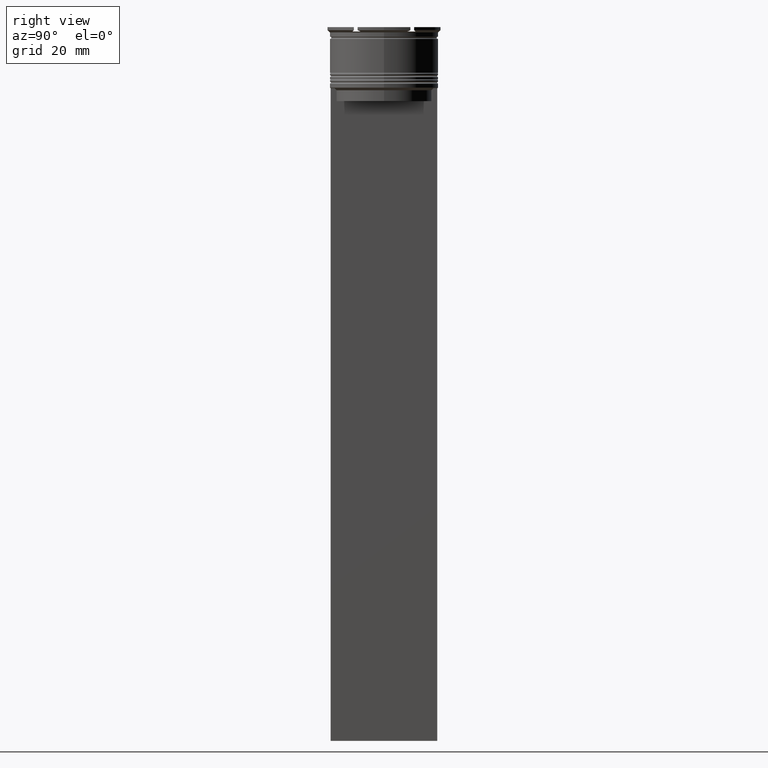
[diagram: clean part render]
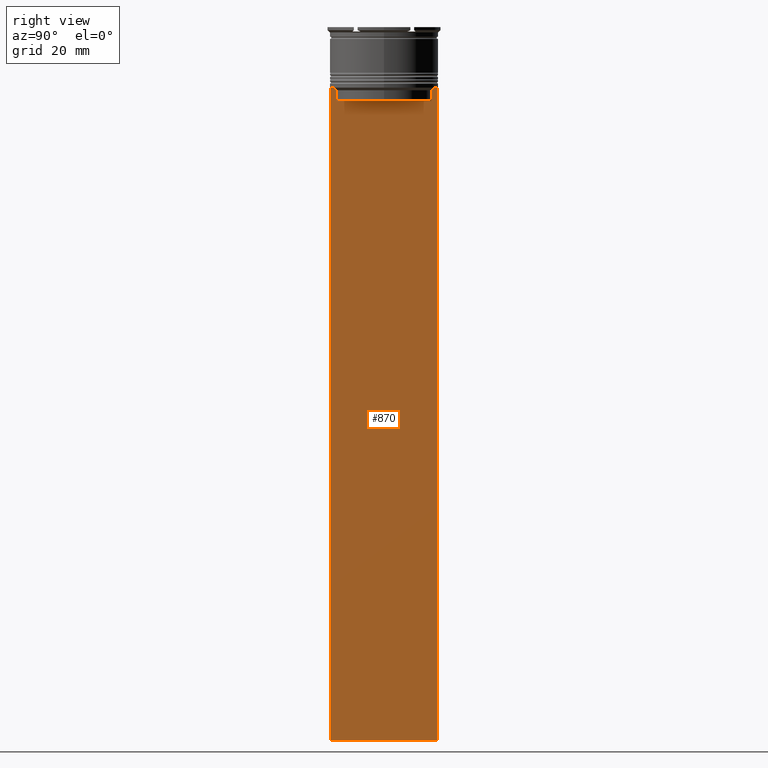
[diagram: same view with one face highlighted and labeled with its STEP entity id]
A machine part, right view. The second image highlights one B-rep face of the part: STEP entity #870.
In plain terms, the highlighted planar face has unit normal (-1, 0, 0).
Its self-contained STEP definition (entity closure, byte-faithful):
#9 = ORIENTED_EDGE ( 'NONE', *, *, #183, .T. ) ;
#49 = VERTEX_POINT ( 'NONE', #2136 ) ;
#102 = CARTESIAN_POINT ( 'NONE',  ( 0.5000000000000002220, -10.88852607105296144, -17.00000000000000000 ) ) ;
#107 = VERTEX_POINT ( 'NONE', #1442 ) ;
#111 = EDGE_CURVE ( 'NONE', #1948, #49, #852, .T. ) ;
#163 = LINE ( 'NONE', #1011, #2154 ) ;
#182 = DIRECTION ( 'NONE',  ( 0.000000000000000000, -1.000000000000000000, 0.000000000000000000 ) ) ;
#183 = EDGE_CURVE ( 'NONE', #699, #2387, #906, .T. ) ;
#318 = CARTESIAN_POINT ( 'NONE',  ( 0.5000000000000002220, -11.38902980942626719, -14.00000000000000178 ) ) ;
#376 = CARTESIAN_POINT ( 'NONE',  ( 0.5000000000000002220, 12.24999999999999289, 10.52039967047845792 ) ) ;
#386 = ORIENTED_EDGE ( 'NONE', *, *, #111, .T. ) ;
#441 = VECTOR ( 'NONE', #182, 1000.000000000000000 ) ;
#508 = ORIENTED_EDGE ( 'NONE', *, *, #1484, .F. ) ;
#515 = EDGE_LOOP ( 'NONE', ( #386, #2694, #1500, #1525, #9, #2503, #825, #2546, #980, #508 ) ) ;
#604 = CARTESIAN_POINT ( 'NONE',  ( 0.5000000000000002220, -10.88852607105296322, -14.50000000000000000 ) ) ;
#618 = VECTOR ( 'NONE', #691, 1000.000000000000000 ) ;
#686 = CARTESIAN_POINT ( 'NONE',  ( 0.5000000000000002220, -10.88852607105296322, -14.50000000000000000 ) ) ;
#691 = DIRECTION ( 'NONE',  ( -0.000000000000000000, -0.000000000000000000, 1.000000000000000000 ) ) ;
#699 = VERTEX_POINT ( 'NONE', #102 ) ;
#783 = CARTESIAN_POINT ( 'NONE',  ( 0.5000000000000002220, -12.25000000000000711, 10.52039967047845792 ) ) ;
#798 = AXIS2_PLACEMENT_3D ( 'NONE', #2693, #1403, #2511 ) ;
#825 = ORIENTED_EDGE ( 'NONE', *, *, #849, .T. ) ;
#849 = EDGE_CURVE ( 'NONE', #107, #2537, #1605, .T. ) ;
#852 = LINE ( 'NONE', #1455, #441 ) ;
#855 = CARTESIAN_POINT ( 'NONE',  ( 0.5000000000000002220, 10.88852607105296322, -14.50000000000000000 ) ) ;
#870 = ADVANCED_FACE ( 'NONE', ( #979 ), #1418, .F. ) ;
#885 = VECTOR ( 'NONE', #1676, 1000.000000000000000 ) ;
#906 = LINE ( 'NONE', #1722, #618 ) ;
#959 = LINE ( 'NONE', #376, #885 ) ;
#979 = FACE_OUTER_BOUND ( 'NONE', #515, .T. ) ;
#980 = ORIENTED_EDGE ( 'NONE', *, *, #1042, .T. ) ;
#1011 = CARTESIAN_POINT ( 'NONE',  ( 0.5000000000000002220, -12.25000000000000711, -163.9999999999999716 ) ) ;
#1026 = VECTOR ( 'NONE', #1843, 1000.000000000000000 ) ;
#1041 = B_SPLINE_CURVE_WITH_KNOTS ( 'NONE', 3,
 ( #686, #1328, #2204, #318 ),
 .UNSPECIFIED., .F., .F.,
 ( 4, 4 ),
 ( 0.05041323384703228633, 0.05112713601261608537 ),
 .UNSPECIFIED. ) ;
#1042 = EDGE_CURVE ( 'NONE', #2320, #2413, #163, .T. ) ;
#1102 = B_SPLINE_CURVE_WITH_KNOTS ( 'NONE', 3,
 ( #2596, #1260, #2556, #855 ),
 .UNSPECIFIED., .F., .F.,
 ( 4, 4 ),
 ( 0.01935560801904634073, 0.02006307108468586772 ),
 .UNSPECIFIED. ) ;
#1260 = CARTESIAN_POINT ( 'NONE',  ( 0.5000000000000002220, 11.22219891375843304, -14.16667035472756808 ) ) ;
#1300 = DIRECTION ( 'NONE',  ( 0.000000000000000000, 0.000000000000000000, -1.000000000000000000 ) ) ;
#1310 = CARTESIAN_POINT ( 'NONE',  ( 0.5000000000000002220, 10.88852607105296144, -17.00000000000000000 ) ) ;
#1328 = CARTESIAN_POINT ( 'NONE',  ( 0.5000000000000002220, -11.05536450423839057, -14.33333718996393280 ) ) ;
#1330 = VECTOR ( 'NONE', #2490, 1000.000000000000000 ) ;
#1383 = VECTOR ( 'NONE', #1300, 1000.000000000000000 ) ;
#1400 = EDGE_CURVE ( 'NONE', #2387, #107, #1041, .T. ) ;
#1403 = DIRECTION ( 'NONE',  ( -1.000000000000000000, 0.000000000000000000, 0.000000000000000000 ) ) ;
#1418 = PLANE ( 'NONE',  #798 ) ;
#1432 = LINE ( 'NONE', #783, #1026 ) ;
#1442 = CARTESIAN_POINT ( 'NONE',  ( 0.5000000000000002220, -11.38902980942626719, -14.00000000000000178 ) ) ;
#1455 = CARTESIAN_POINT ( 'NONE',  ( 0.5000000000000002220, -12.25000000000000711, -14.00000000000000178 ) ) ;
#1464 = DIRECTION ( 'NONE',  ( 0.000000000000000000, 1.000000000000000000, 0.000000000000000000 ) ) ;
#1484 = EDGE_CURVE ( 'NONE', #1948, #2413, #959, .T. ) ;
#1500 = ORIENTED_EDGE ( 'NONE', *, *, #1677, .T. ) ;
#1516 = LINE ( 'NONE', #2371, #2692 ) ;
#1525 = ORIENTED_EDGE ( 'NONE', *, *, #2789, .T. ) ;
#1605 = LINE ( 'NONE', #1834, #1330 ) ;
#1658 = EDGE_CURVE ( 'NONE', #49, #1760, #1102, .T. ) ;
#1676 = DIRECTION ( 'NONE',  ( 0.000000000000000000, 0.000000000000000000, -1.000000000000000000 ) ) ;
#1677 = EDGE_CURVE ( 'NONE', #1760, #2117, #1912, .T. ) ;
#1722 = CARTESIAN_POINT ( 'NONE',  ( 0.5000000000000002220, -10.88852607105296322, 0.000000000000000000 ) ) ;
#1760 = VERTEX_POINT ( 'NONE', #2400 ) ;
#1834 = CARTESIAN_POINT ( 'NONE',  ( 0.5000000000000002220, -12.25000000000000711, -14.00000000000000178 ) ) ;
#1843 = DIRECTION ( 'NONE',  ( 0.000000000000000000, 0.000000000000000000, -1.000000000000000000 ) ) ;
#1912 = LINE ( 'NONE', #2386, #1383 ) ;
#1915 = EDGE_CURVE ( 'NONE', #2537, #2320, #1432, .T. ) ;
#1929 = DIRECTION ( 'NONE',  ( 0.000000000000000000, -1.000000000000000000, 0.000000000000000000 ) ) ;
#1934 = CARTESIAN_POINT ( 'NONE',  ( 0.5000000000000002220, 12.24999999999999289, -163.9999999999999716 ) ) ;
#1948 = VERTEX_POINT ( 'NONE', #2272 ) ;
#2117 = VERTEX_POINT ( 'NONE', #1310 ) ;
#2136 = CARTESIAN_POINT ( 'NONE',  ( 0.5000000000000002220, 11.38902980942626719, -14.00000000000000178 ) ) ;
#2154 = VECTOR ( 'NONE', #1464, 1000.000000000000000 ) ;
#2204 = CARTESIAN_POINT ( 'NONE',  ( 0.5000000000000002220, -11.22219891450652973, -14.16667035398018903 ) ) ;
#2272 = CARTESIAN_POINT ( 'NONE',  ( 0.5000000000000002220, 12.24999999999999289, -14.00000000000000178 ) ) ;
#2320 = VERTEX_POINT ( 'NONE', #2365 ) ;
#2365 = CARTESIAN_POINT ( 'NONE',  ( 0.5000000000000002220, -12.25000000000000711, -163.9999999999999716 ) ) ;
#2371 = CARTESIAN_POINT ( 'NONE',  ( 0.5000000000000002220, 10.90000000000000213, -17.00000000000000000 ) ) ;
#2386 = CARTESIAN_POINT ( 'NONE',  ( 0.5000000000000002220, 10.88852607105296322, 0.000000000000000000 ) ) ;
#2387 = VERTEX_POINT ( 'NONE', #604 ) ;
#2400 = CARTESIAN_POINT ( 'NONE',  ( 0.5000000000000002220, 10.88852607105296322, -14.50000000000000000 ) ) ;
#2413 = VERTEX_POINT ( 'NONE', #1934 ) ;
#2490 = DIRECTION ( 'NONE',  ( 0.000000000000000000, -1.000000000000000000, 0.000000000000000000 ) ) ;
#2503 = ORIENTED_EDGE ( 'NONE', *, *, #1400, .T. ) ;
#2511 = DIRECTION ( 'NONE',  ( 0.000000000000000000, 0.000000000000000000, 1.000000000000000000 ) ) ;
#2537 = VERTEX_POINT ( 'NONE', #2626 ) ;
#2546 = ORIENTED_EDGE ( 'NONE', *, *, #1915, .T. ) ;
#2556 = CARTESIAN_POINT ( 'NONE',  ( 0.5000000000000002220, 11.05536450345590538, -14.33333719074559376 ) ) ;
#2596 = CARTESIAN_POINT ( 'NONE',  ( 0.5000000000000002220, 11.38902980942626719, -14.00000000000000178 ) ) ;
#2626 = CARTESIAN_POINT ( 'NONE',  ( 0.5000000000000002220, -12.25000000000000711, -14.00000000000000178 ) ) ;
#2692 = VECTOR ( 'NONE', #1929, 1000.000000000000000 ) ;
#2693 = CARTESIAN_POINT ( 'NONE',  ( 0.5000000000000002220, -12.25000000000000711, 10.52039967047845792 ) ) ;
#2694 = ORIENTED_EDGE ( 'NONE', *, *, #1658, .T. ) ;
#2789 = EDGE_CURVE ( 'NONE', #2117, #699, #1516, .T. ) ;